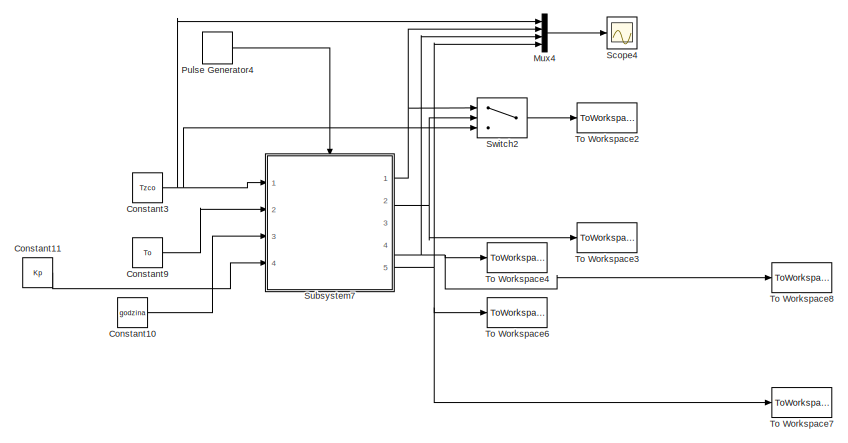
[diagram: root canvas - part 1/2, top left region]
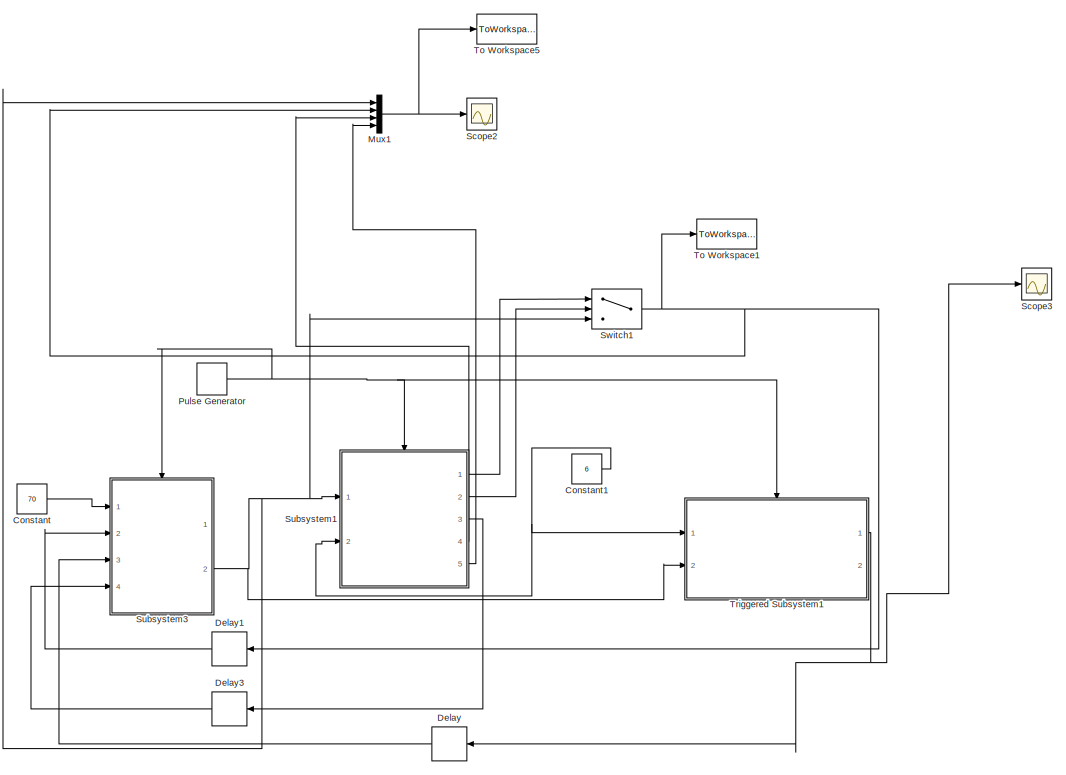
[diagram: root canvas - part 2/2, right side, full height]
MODEL slx_4477e643619d
KIND model
BLOCK [Constant] Constant
  Commented = on
  Value = 70
BLOCK [Constant] Constant1
  Commented = on
  Value = 6
BLOCK [Constant] Constant10
  Value = godzina
BLOCK [Constant] Constant11
  Value = Kp
BLOCK [Constant] Constant3
  Value = Tzco
BLOCK [Constant] Constant9
  Value = To
BLOCK [Delay] Delay
  Commented = on
  DelayLength = 1
  InitialCondition = 0
  InputPortMap = u0
  Ports = [1, 1]
  SampleTime = 1
BLOCK [Delay] Delay1
  Commented = on
  DelayLength = 1
  InitialCondition = 0
  InputPortMap = u0
  Ports = [1, 1]
  SampleTime = 1
BLOCK [Delay] Delay3
  Commented = on
  DelayLength = 1
  InitialCondition = 0
  InputPortMap = u0
  Ports = [1, 1]
  SampleTime = 1
BLOCK [Mux] Mux1
  Commented = on
  DisplayOption = bar
  Ports = [4, 1]
BLOCK [Mux] Mux4
  DisplayOption = bar
  Ports = [4, 1]
BLOCK [DiscretePulseGenerator] Pulse Generator
  Commented = on
  Period = 1
  Ports = [0, 1]
  PulseType = Time based
  PulseWidth = 50
BLOCK [DiscretePulseGenerator] Pulse Generator4
  Ports = [0, 1]
  PulseType = Time based
  PulseWidth = 50
BLOCK [Scope] Scope2
  Commented = on
  Floating = off
  NumInputPorts = 1
  Ports = [1]
  SaveName = ScopeData3
  ShowLegends = off
  TimeRange = 100
  YMax = 50
  YMin = 0
BLOCK [Scope] Scope3
  Commented = on
  Floating = off
  NumInputPorts = 1
  Ports = [1]
  ShowLegends = off
  YMax = 22.5
  YMin = 0
  ZoomMode = yonly
BLOCK [Scope] Scope4
  Floating = off
  NumInputPorts = 1
  Ports = [1]
  SaveName = ScopeData4
  ShowLegends = off
  YMax = 40
  YMin = 0
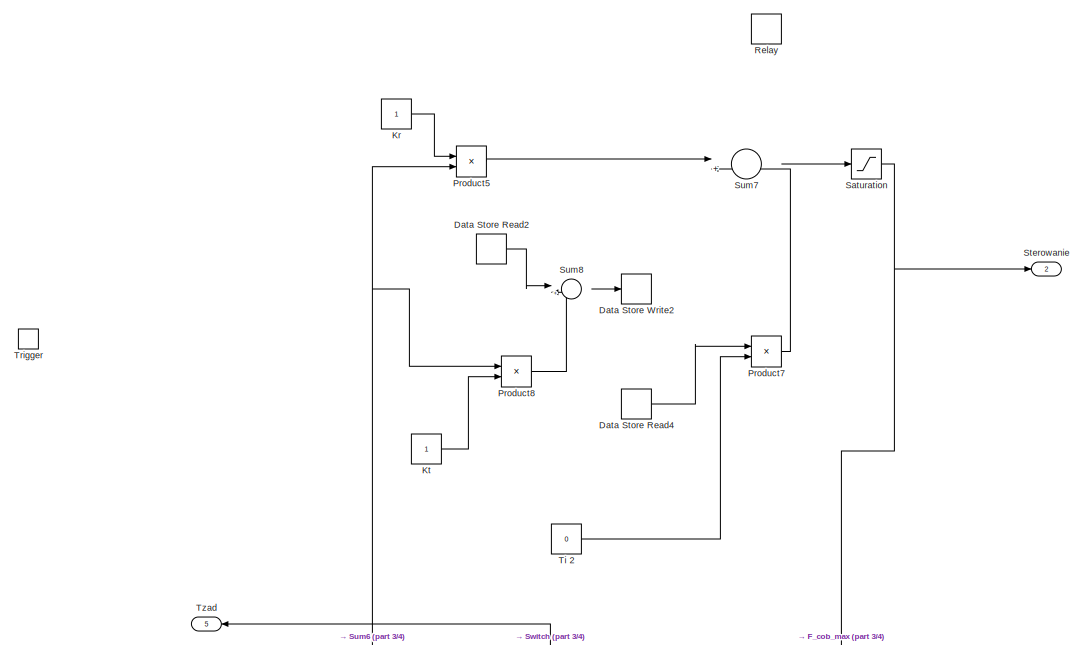
[diagram: Subsystem1 - part 1/4, top center region]
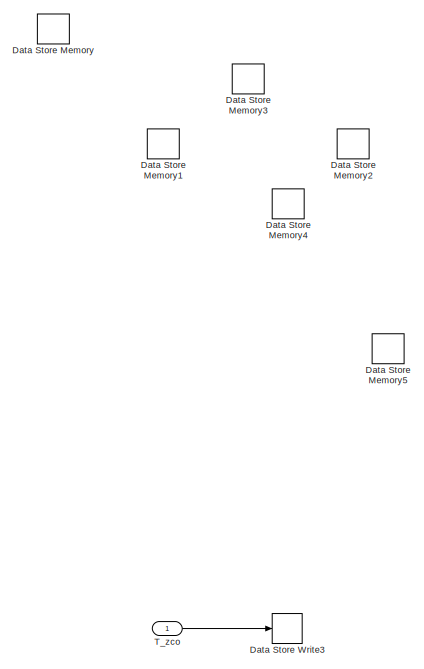
[diagram: Subsystem1 - part 2/4, middle right region]
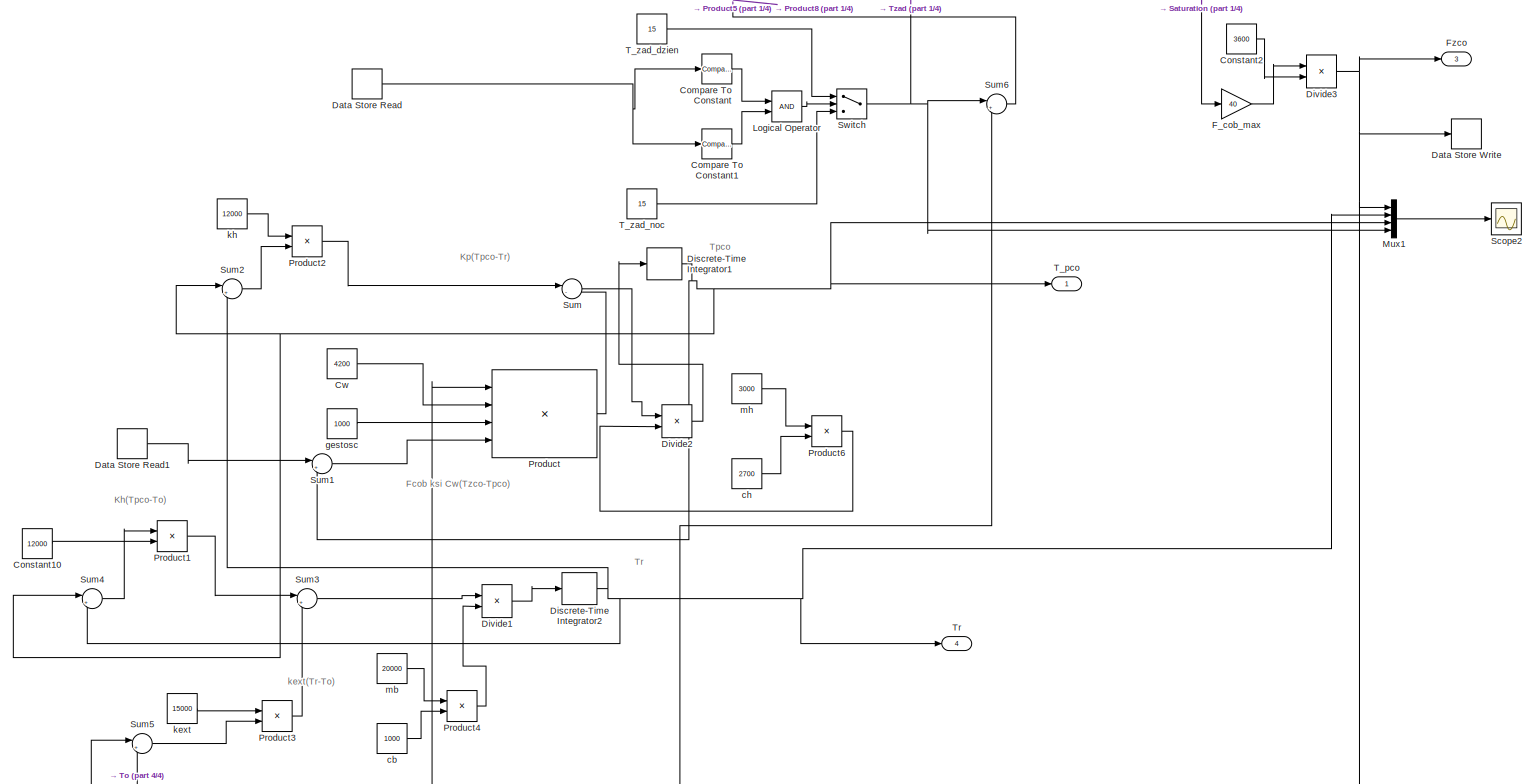
[diagram: Subsystem1 - part 3/4, bottom center region]
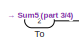
[diagram: Subsystem1 - part 4/4, bottom left region]
BLOCK [SubSystem] Subsystem1
  Commented = on
  Ports = [2, 5, 0, 1]
  RequestExecContextInheritance = off
BLOCK [Reference] Subsystem1/Compare To Constant  REF=simulink/Logic and Bit
Operations/Compare
To Constant
  OutDataTypeStr = uint8
  Ports = [1, 1]
  SourceBlock = simulink/Logic and Bit\nOperations/Compare\nTo Constant
  SourceType = Compare To Constant
  ZeroCross = off
  const = 22
  relop = <
BLOCK [Reference] Subsystem1/Compare To Constant1  REF=simulink/Logic and Bit
Operations/Compare
To Constant
  OutDataTypeStr = uint8
  Ports = [1, 1]
  SourceBlock = simulink/Logic and Bit\nOperations/Compare\nTo Constant
  SourceType = Compare To Constant
  ZeroCross = off
  const = 6
  relop = >
BLOCK [Constant] Subsystem1/Constant10
  Value = 12000
BLOCK [Constant] Subsystem1/Constant2
  Value = 3600
BLOCK [Constant] Subsystem1/Cw
  Value = 4200
BLOCK [DataStoreMemory] Subsystem1/Data Store Memory
  DataStoreName = Calka
  ReadBeforeWriteMsg = warning
  WriteAfterReadMsg = warning
  WriteAfterWriteMsg = warning
BLOCK [DataStoreMemory] Subsystem1/Data Store Memory1
  DataStoreName = godz
  InitialValue = 10
  ReadBeforeWriteMsg = warning
  WriteAfterReadMsg = warning
  WriteAfterWriteMsg = warning
BLOCK [DataStoreMemory] Subsystem1/Data Store Memory2
  DataStoreName = Tpco
  InitialValue = 10
  ReadBeforeWriteMsg = warning
  WriteAfterReadMsg = warning
  WriteAfterWriteMsg = warning
BLOCK [DataStoreMemory] Subsystem1/Data Store Memory3
  DataStoreName = T_o
  ReadBeforeWriteMsg = warning
  WriteAfterReadMsg = warning
  WriteAfterWriteMsg = warning
BLOCK [DataStoreMemory] Subsystem1/Data Store Memory4
  DataStoreName = F_cob
  InitialValue = 30
  ReadBeforeWriteMsg = warning
  WriteAfterReadMsg = warning
  WriteAfterWriteMsg = warning
BLOCK [DataStoreMemory] Subsystem1/Data Store Memory5
  DataStoreName = Tzco
  InitialValue = 10
  ReadBeforeWriteMsg = warning
  WriteAfterReadMsg = warning
  WriteAfterWriteMsg = warning
BLOCK [DataStoreRead] Subsystem1/Data Store Read
  DataStoreName = godz
  Ports = [0, 1]
BLOCK [DataStoreRead] Subsystem1/Data Store Read1
  DataStoreName = Tzco
  Ports = [0, 1]
BLOCK [DataStoreRead] Subsystem1/Data Store Read2
  DataStoreName = Calka
  Ports = [0, 1]
BLOCK [DataStoreRead] Subsystem1/Data Store Read4
  DataStoreName = Calka
  Ports = [0, 1]
BLOCK [DataStoreWrite] Subsystem1/Data Store Write
  DataStoreName = F_cob
  Ports = [1]
BLOCK [DataStoreWrite] Subsystem1/Data Store Write2
  DataStoreName = Calka
  Ports = [1]
BLOCK [DataStoreWrite] Subsystem1/Data Store Write3
  DataStoreName = Tzco
  Ports = [1]
BLOCK [DiscreteIntegrator] Subsystem1/Discrete-Time Integrator1
  ICPrevOutput = DiscIntNeverNeededParam
  ICPrevScaledInput = DiscIntNeverNeededParam
  InitialCondition = 20
  Ports = [1, 1]
  SampleTime = -1
  gainval = 1
BLOCK [DiscreteIntegrator] Subsystem1/Discrete-Time Integrator2
  ICPrevOutput = DiscIntNeverNeededParam
  ICPrevScaledInput = DiscIntNeverNeededParam
  Ports = [1, 1]
  SampleTime = -1
  gainval = 1
BLOCK [Product] Subsystem1/Divide1
  InputSameDT = off
  Inputs = */
  OutDataTypeStr = Inherit: Inherit via internal rule
  Ports = [2, 1]
  RndMeth = Floor
  SaturateOnIntegerOverflow = off
BLOCK [Product] Subsystem1/Divide2
  InputSameDT = off
  Inputs = */
  OutDataTypeStr = Inherit: Inherit via internal rule
  Ports = [2, 1]
  RndMeth = Floor
  SaturateOnIntegerOverflow = off
BLOCK [Product] Subsystem1/Divide3
  InputSameDT = off
  Inputs = */
  OutDataTypeStr = Inherit: Inherit via internal rule
  Ports = [2, 1]
  RndMeth = Floor
  SaturateOnIntegerOverflow = off
BLOCK [Gain] Subsystem1/F_cob_max
  Gain = 40
  OutDataTypeStr = Inherit: Inherit via internal rule
  ParamDataTypeStr = Inherit: Inherit via internal rule
  SaturateOnIntegerOverflow = off
BLOCK [Outport] Subsystem1/Fzco
  IconDisplay = Port number
  Port = 3
BLOCK [Constant] Subsystem1/Kr 
BLOCK [Constant] Subsystem1/Kt 
BLOCK [Logic] Subsystem1/Logical Operator
  AllPortsSameDT = off
  OutDataTypeStr = boolean
  Ports = [2, 1]
BLOCK [Mux] Subsystem1/Mux1
  DisplayOption = bar
  Ports = [4, 1]
BLOCK [Product] Subsystem1/Product
  InputSameDT = off
  Inputs = 4
  OutDataTypeStr = Inherit: Inherit via internal rule
  Ports = [4, 1]
  SaturateOnIntegerOverflow = off
BLOCK [Product] Subsystem1/Product1
  InputSameDT = off
  OutDataTypeStr = Inherit: Inherit via internal rule
  Ports = [2, 1]
  SaturateOnIntegerOverflow = off
BLOCK [Product] Subsystem1/Product2
  InputSameDT = off
  OutDataTypeStr = Inherit: Inherit via internal rule
  Ports = [2, 1]
  SaturateOnIntegerOverflow = off
BLOCK [Product] Subsystem1/Product3
  InputSameDT = off
  OutDataTypeStr = Inherit: Inherit via internal rule
  Ports = [2, 1]
  SaturateOnIntegerOverflow = off
BLOCK [Product] Subsystem1/Product4
  InputSameDT = off
  OutDataTypeStr = Inherit: Inherit via internal rule
  Ports = [2, 1]
  SaturateOnIntegerOverflow = off
BLOCK [Product] Subsystem1/Product5
  InputSameDT = off
  OutDataTypeStr = Inherit: Inherit via internal rule
  Ports = [2, 1]
  SaturateOnIntegerOverflow = off
BLOCK [Product] Subsystem1/Product6
  InputSameDT = off
  OutDataTypeStr = Inherit: Inherit via internal rule
  Ports = [2, 1]
  SaturateOnIntegerOverflow = off
BLOCK [Product] Subsystem1/Product7
  InputSameDT = off
  OutDataTypeStr = Inherit: Inherit via internal rule
  Ports = [2, 1]
  SaturateOnIntegerOverflow = off
BLOCK [Product] Subsystem1/Product8
  InputSameDT = off
  OutDataTypeStr = Inherit: Inherit via internal rule
  Ports = [2, 1]
  SaturateOnIntegerOverflow = off
BLOCK [Relay] Subsystem1/Relay
  InputProcessing = Elements as channels (sample based)
BLOCK [Saturate] Subsystem1/Saturation
  InputPortMap = u0
  LowerLimit = 0
  Ports = [1, 1]
  UpperLimit = 1
BLOCK [Scope] Subsystem1/Scope2
  Floating = off
  NumInputPorts = 1
  Ports = [1]
  SaveName = ScopeData2
  ShowLegends = off
  YMax = 35
  YMin = 0
BLOCK [Outport] Subsystem1/Sterowanie
  IconDisplay = Port number
  Port = 2
BLOCK [Sum] Subsystem1/Sum
  IconShape = round
  InputSameDT = off
  Inputs = |-+
  OutDataTypeStr = Inherit: Inherit via internal rule
  Ports = [2, 1]
  SaturateOnIntegerOverflow = off
BLOCK [Sum] Subsystem1/Sum1
  IconShape = round
  InputSameDT = off
  Inputs = |+-
  OutDataTypeStr = Inherit: Inherit via internal rule
  Ports = [2, 1]
  SaturateOnIntegerOverflow = off
BLOCK [Sum] Subsystem1/Sum2
  IconShape = round
  InputSameDT = off
  Inputs = |+-
  OutDataTypeStr = Inherit: Inherit via internal rule
  Ports = [2, 1]
  SaturateOnIntegerOverflow = off
BLOCK [Sum] Subsystem1/Sum3
  IconShape = round
  InputSameDT = off
  Inputs = |+-
  OutDataTypeStr = Inherit: Inherit via internal rule
  Ports = [2, 1]
  SaturateOnIntegerOverflow = off
BLOCK [Sum] Subsystem1/Sum4
  IconShape = round
  InputSameDT = off
  Inputs = |+-
  OutDataTypeStr = Inherit: Inherit via internal rule
  Ports = [2, 1]
  SaturateOnIntegerOverflow = off
BLOCK [Sum] Subsystem1/Sum5
  IconShape = round
  InputSameDT = off
  Inputs = |+-
  OutDataTypeStr = Inherit: Inherit via internal rule
  Ports = [2, 1]
  SaturateOnIntegerOverflow = off
BLOCK [Sum] Subsystem1/Sum6
  IconShape = round
  InputSameDT = off
  Inputs = |+-
  OutDataTypeStr = Inherit: Inherit via internal rule
  Ports = [2, 1]
  SaturateOnIntegerOverflow = off
BLOCK [Sum] Subsystem1/Sum7
  IconShape = round
  InputSameDT = off
  Inputs = |++
  OutDataTypeStr = Inherit: Inherit via internal rule
  Ports = [2, 1]
  SaturateOnIntegerOverflow = off
BLOCK [Sum] Subsystem1/Sum8
  IconShape = round
  InputSameDT = off
  Inputs = |++
  OutDataTypeStr = Inherit: Inherit via internal rule
  Ports = [2, 1]
  SaturateOnIntegerOverflow = off
BLOCK [Switch] Subsystem1/Switch
  Criteria = u2 > Threshold
  InputSameDT = off
  SaturateOnIntegerOverflow = off
BLOCK [Outport] Subsystem1/T_pco
  IconDisplay = Port number
BLOCK [Constant] Subsystem1/T_zad_dzien
  Value = 15
BLOCK [Constant] Subsystem1/T_zad_noc
  Value = 15
BLOCK [Inport] Subsystem1/T_zco
  IconDisplay = Port number
BLOCK [Constant] Subsystem1/Ti 2
  Value = 0
BLOCK [Inport] Subsystem1/To
  IconDisplay = Port number
  Port = 2
BLOCK [Outport] Subsystem1/Tr
  IconDisplay = Port number
  Port = 4
BLOCK [TriggerPort] Subsystem1/Trigger
  PortDimensions = 1
  Ports = []
  StatesWhenEnabling = held
BLOCK [Outport] Subsystem1/Tzad
  IconDisplay = Port number
  Port = 5
BLOCK [Constant] Subsystem1/cb 
  Value = 1000
BLOCK [Constant] Subsystem1/ch
  Value = 2700
BLOCK [Constant] Subsystem1/gestosc 
  Value = 1000
BLOCK [Constant] Subsystem1/kext
  Value = 15000
BLOCK [Constant] Subsystem1/kh
  Value = 12000
BLOCK [Constant] Subsystem1/mb
  Value = 20000
BLOCK [Constant] Subsystem1/mh
  Value = 3000
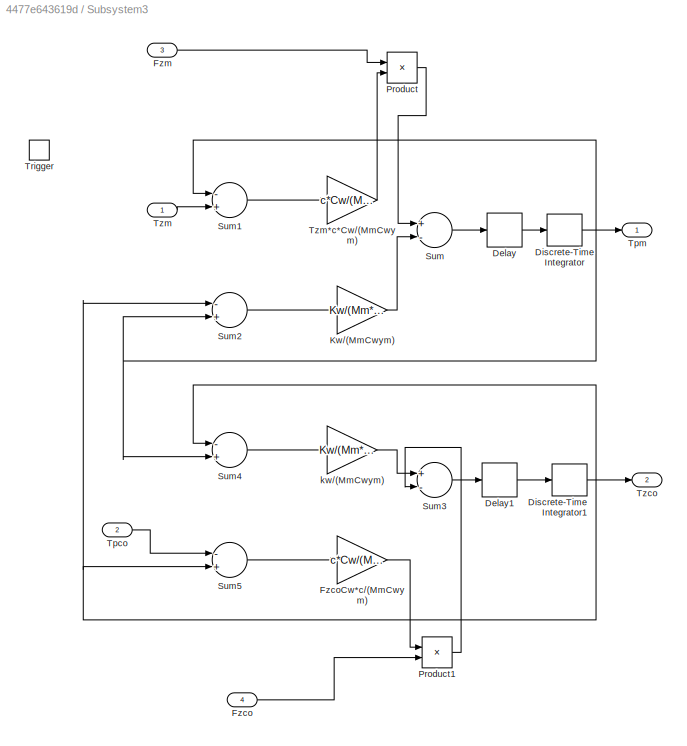
BLOCK [SubSystem] Subsystem3
  Commented = on
  Ports = [4, 2, 0, 1]
  RequestExecContextInheritance = off
BLOCK [Delay] Subsystem3/Delay
  DelayLength = 1
  InitialCondition = 0
  InputPortMap = u0
  Ports = [1, 1]
BLOCK [Delay] Subsystem3/Delay1
  DelayLength = 1
  InitialCondition = 0
  InputPortMap = u0
  Ports = [1, 1]
BLOCK [DiscreteIntegrator] Subsystem3/Discrete-Time Integrator
  ICPrevOutput = DiscIntNeverNeededParam
  ICPrevScaledInput = DiscIntNeverNeededParam
  InitialCondition = 40
  IntegratorMethod = Integration: Trapezoidal
  Ports = [1, 1]
  SampleTime = -1
BLOCK [DiscreteIntegrator] Subsystem3/Discrete-Time Integrator1
  ICPrevOutput = DiscIntNeverNeededParam
  ICPrevScaledInput = DiscIntNeverNeededParam
  InitialCondition = 80
  IntegratorMethod = Integration: Trapezoidal
  Ports = [1, 1]
  SampleTime = -1
BLOCK [Inport] Subsystem3/Fzco
  IconDisplay = Port number
  Port = 4
BLOCK [Gain] Subsystem3/FzcoCw*c//(MmCwym)
  Gain = c*Cw/(Mm*Cwym)
  OutDataTypeStr = Inherit: Inherit via internal rule
  ParamDataTypeStr = Inherit: Inherit via internal rule
  SaturateOnIntegerOverflow = off
BLOCK [Inport] Subsystem3/Fzm
  IconDisplay = Port number
  Port = 3
BLOCK [Gain] Subsystem3/Kw//(MmCwym)
  Gain = Kw/(Mm*Cwym)
  OutDataTypeStr = Inherit: Inherit via internal rule
  ParamDataTypeStr = Inherit: Inherit via internal rule
  SaturateOnIntegerOverflow = off
BLOCK [Product] Subsystem3/Product
  InputSameDT = off
  OutDataTypeStr = Inherit: Inherit via internal rule
  Ports = [2, 1]
  RndMeth = Floor
  SaturateOnIntegerOverflow = off
BLOCK [Product] Subsystem3/Product1
  InputSameDT = off
  OutDataTypeStr = Inherit: Inherit via internal rule
  Ports = [2, 1]
  SaturateOnIntegerOverflow = off
BLOCK [Sum] Subsystem3/Sum
  InputSameDT = off
  Inputs = +-
  OutDataTypeStr = Inherit: Inherit via internal rule
  Ports = [2, 1]
  SaturateOnIntegerOverflow = off
BLOCK [Sum] Subsystem3/Sum1
  InputSameDT = off
  Inputs = -+
  OutDataTypeStr = Inherit: Inherit via internal rule
  Ports = [2, 1]
  SaturateOnIntegerOverflow = off
BLOCK [Sum] Subsystem3/Sum2
  InputSameDT = off
  Inputs = -+
  OutDataTypeStr = Inherit: Inherit via internal rule
  Ports = [2, 1]
  SaturateOnIntegerOverflow = off
BLOCK [Sum] Subsystem3/Sum3
  InputSameDT = off
  Inputs = +-
  OutDataTypeStr = Inherit: Inherit via internal rule
  Ports = [2, 1]
  SaturateOnIntegerOverflow = off
BLOCK [Sum] Subsystem3/Sum4
  InputSameDT = off
  Inputs = -+
  OutDataTypeStr = Inherit: Inherit via internal rule
  Ports = [2, 1]
  SaturateOnIntegerOverflow = off
BLOCK [Sum] Subsystem3/Sum5
  InputSameDT = off
  Inputs = -+
  OutDataTypeStr = Inherit: Inherit via internal rule
  Ports = [2, 1]
  SaturateOnIntegerOverflow = off
BLOCK [Inport] Subsystem3/Tpco
  IconDisplay = Port number
  Port = 2
BLOCK [Outport] Subsystem3/Tpm
  IconDisplay = Port number
BLOCK [TriggerPort] Subsystem3/Trigger
  PortDimensions = 1
  Ports = []
  StatesWhenEnabling = held
BLOCK [Outport] Subsystem3/Tzco
  IconDisplay = Port number
  Port = 2
BLOCK [Inport] Subsystem3/Tzm
  IconDisplay = Port number
BLOCK [Gain] Subsystem3/Tzm*c*Cw//(MmCwym)
  Gain = c*Cw/(Mm*Cwym)
  OutDataTypeStr = Inherit: Inherit via internal rule
  ParamDataTypeStr = Inherit: Inherit via internal rule
  SaturateOnIntegerOverflow = off
BLOCK [Gain] Subsystem3/kw//(MmCwym)
  Gain = Kw/(Mm*Cwym)
  OutDataTypeStr = Inherit: Inherit via internal rule
  ParamDataTypeStr = Inherit: Inherit via internal rule
  SaturateOnIntegerOverflow = off
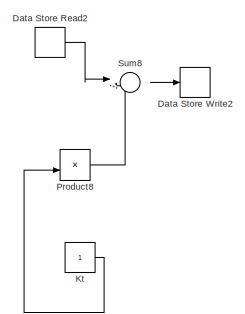
[diagram: Subsystem7 - part 1/4, top left region]
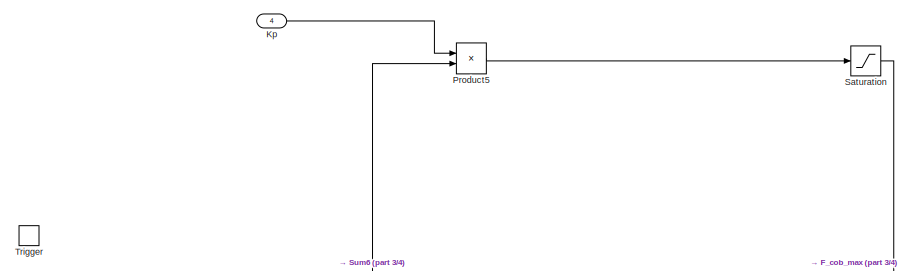
[diagram: Subsystem7 - part 2/4, middle right region]
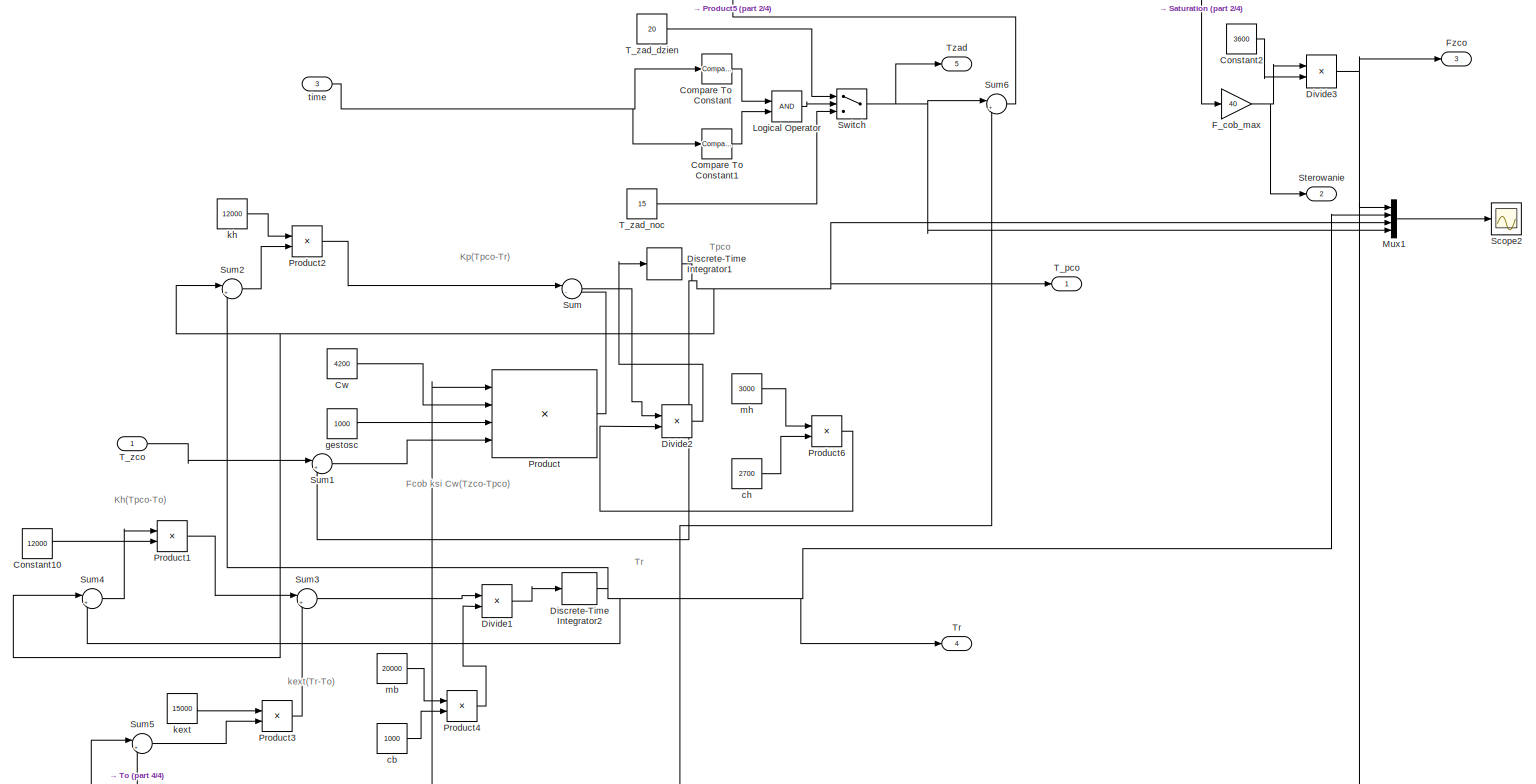
[diagram: Subsystem7 - part 3/4, bottom right region]
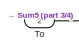
[diagram: Subsystem7 - part 4/4, bottom center region]
BLOCK [SubSystem] Subsystem7
  Ports = [4, 5, 0, 1]
  RequestExecContextInheritance = off
BLOCK [Reference] Subsystem7/Compare To Constant  REF=simulink/Logic and Bit
Operations/Compare
To Constant
  OutDataTypeStr = uint8
  Ports = [1, 1]
  SourceBlock = simulink/Logic and Bit\nOperations/Compare\nTo Constant
  SourceType = Compare To Constant
  ZeroCross = off
  const = 22
  relop = <
BLOCK [Reference] Subsystem7/Compare To Constant1  REF=simulink/Logic and Bit
Operations/Compare
To Constant
  OutDataTypeStr = uint8
  Ports = [1, 1]
  SourceBlock = simulink/Logic and Bit\nOperations/Compare\nTo Constant
  SourceType = Compare To Constant
  ZeroCross = off
  const = 6
  relop = >
BLOCK [Constant] Subsystem7/Constant10
  Value = 12000
BLOCK [Constant] Subsystem7/Constant2
  Value = 3600
BLOCK [Constant] Subsystem7/Cw
  Value = 4200
BLOCK [DataStoreRead] Subsystem7/Data Store Read2
  Commented = on
  DataStoreName = Calka
  Ports = [0, 1]
BLOCK [DataStoreWrite] Subsystem7/Data Store Write2
  Commented = on
  DataStoreName = Calka
  Ports = [1]
BLOCK [DiscreteIntegrator] Subsystem7/Discrete-Time Integrator1
  ICPrevOutput = DiscIntNeverNeededParam
  ICPrevScaledInput = DiscIntNeverNeededParam
  InitialCondition = 20
  Ports = [1, 1]
  SampleTime = -1
  gainval = 1
BLOCK [DiscreteIntegrator] Subsystem7/Discrete-Time Integrator2
  ICPrevOutput = DiscIntNeverNeededParam
  ICPrevScaledInput = DiscIntNeverNeededParam
  InitialCondition = 15
  Ports = [1, 1]
  SampleTime = -1
  gainval = 1
BLOCK [Product] Subsystem7/Divide1
  InputSameDT = off
  Inputs = */
  OutDataTypeStr = Inherit: Inherit via internal rule
  Ports = [2, 1]
  RndMeth = Floor
  SaturateOnIntegerOverflow = off
BLOCK [Product] Subsystem7/Divide2
  InputSameDT = off
  Inputs = */
  OutDataTypeStr = Inherit: Inherit via internal rule
  Ports = [2, 1]
  RndMeth = Floor
  SaturateOnIntegerOverflow = off
BLOCK [Product] Subsystem7/Divide3
  InputSameDT = off
  Inputs = */
  OutDataTypeStr = Inherit: Inherit via internal rule
  Ports = [2, 1]
  RndMeth = Floor
  SaturateOnIntegerOverflow = off
BLOCK [Gain] Subsystem7/F_cob_max
  Gain = 40
  OutDataTypeStr = Inherit: Inherit via internal rule
  ParamDataTypeStr = Inherit: Inherit via internal rule
  SaturateOnIntegerOverflow = off
BLOCK [Outport] Subsystem7/Fzco
  IconDisplay = Port number
  Port = 3
BLOCK [Inport] Subsystem7/Kp
  IconDisplay = Port number
  Port = 4
BLOCK [Constant] Subsystem7/Kt 
  Commented = on
BLOCK [Logic] Subsystem7/Logical Operator
  AllPortsSameDT = off
  OutDataTypeStr = boolean
  Ports = [2, 1]
BLOCK [Mux] Subsystem7/Mux1
  DisplayOption = bar
  Ports = [4, 1]
BLOCK [Product] Subsystem7/Product
  InputSameDT = off
  Inputs = 4
  OutDataTypeStr = Inherit: Inherit via internal rule
  Ports = [4, 1]
  SaturateOnIntegerOverflow = off
BLOCK [Product] Subsystem7/Product1
  InputSameDT = off
  OutDataTypeStr = Inherit: Inherit via internal rule
  Ports = [2, 1]
  SaturateOnIntegerOverflow = off
BLOCK [Product] Subsystem7/Product2
  InputSameDT = off
  OutDataTypeStr = Inherit: Inherit via internal rule
  Ports = [2, 1]
  SaturateOnIntegerOverflow = off
BLOCK [Product] Subsystem7/Product3
  InputSameDT = off
  OutDataTypeStr = Inherit: Inherit via internal rule
  Ports = [2, 1]
  SaturateOnIntegerOverflow = off
BLOCK [Product] Subsystem7/Product4
  InputSameDT = off
  OutDataTypeStr = Inherit: Inherit via internal rule
  Ports = [2, 1]
  SaturateOnIntegerOverflow = off
BLOCK [Product] Subsystem7/Product5
  InputSameDT = off
  OutDataTypeStr = Inherit: Inherit via internal rule
  Ports = [2, 1]
  SaturateOnIntegerOverflow = off
BLOCK [Product] Subsystem7/Product6
  InputSameDT = off
  OutDataTypeStr = Inherit: Inherit via internal rule
  Ports = [2, 1]
  SaturateOnIntegerOverflow = off
BLOCK [Product] Subsystem7/Product8
  Commented = on
  InputSameDT = off
  OutDataTypeStr = Inherit: Inherit via internal rule
  Ports = [2, 1]
  SaturateOnIntegerOverflow = off
BLOCK [Saturate] Subsystem7/Saturation
  InputPortMap = u0
  LowerLimit = 0
  Ports = [1, 1]
  UpperLimit = 1
BLOCK [Scope] Subsystem7/Scope2
  Floating = off
  NumInputPorts = 1
  Ports = [1]
  SaveName = ScopeData2
  ShowLegends = off
  YMax = 40
  YMin = 0
BLOCK [Outport] Subsystem7/Sterowanie
  IconDisplay = Port number
  Port = 2
BLOCK [Sum] Subsystem7/Sum
  IconShape = round
  InputSameDT = off
  Inputs = |-+
  OutDataTypeStr = Inherit: Inherit via internal rule
  Ports = [2, 1]
  SaturateOnIntegerOverflow = off
BLOCK [Sum] Subsystem7/Sum1
  IconShape = round
  InputSameDT = off
  Inputs = |+-
  OutDataTypeStr = Inherit: Inherit via internal rule
  Ports = [2, 1]
  SaturateOnIntegerOverflow = off
BLOCK [Sum] Subsystem7/Sum2
  IconShape = round
  InputSameDT = off
  Inputs = |+-
  OutDataTypeStr = Inherit: Inherit via internal rule
  Ports = [2, 1]
  SaturateOnIntegerOverflow = off
BLOCK [Sum] Subsystem7/Sum3
  IconShape = round
  InputSameDT = off
  Inputs = |+-
  OutDataTypeStr = Inherit: Inherit via internal rule
  Ports = [2, 1]
  SaturateOnIntegerOverflow = off
BLOCK [Sum] Subsystem7/Sum4
  IconShape = round
  InputSameDT = off
  Inputs = |+-
  OutDataTypeStr = Inherit: Inherit via internal rule
  Ports = [2, 1]
  SaturateOnIntegerOverflow = off
BLOCK [Sum] Subsystem7/Sum5
  IconShape = round
  InputSameDT = off
  Inputs = |+-
  OutDataTypeStr = Inherit: Inherit via internal rule
  Ports = [2, 1]
  SaturateOnIntegerOverflow = off
BLOCK [Sum] Subsystem7/Sum6
  IconShape = round
  InputSameDT = off
  Inputs = |+-
  OutDataTypeStr = Inherit: Inherit via internal rule
  Ports = [2, 1]
  SaturateOnIntegerOverflow = off
BLOCK [Sum] Subsystem7/Sum8
  Commented = on
  IconShape = round
  InputSameDT = off
  Inputs = |++
  OutDataTypeStr = Inherit: Inherit via internal rule
  Ports = [2, 1]
  SaturateOnIntegerOverflow = off
BLOCK [Switch] Subsystem7/Switch
  Criteria = u2 > Threshold
  InputSameDT = off
  SaturateOnIntegerOverflow = off
BLOCK [Outport] Subsystem7/T_pco
  IconDisplay = Port number
BLOCK [Constant] Subsystem7/T_zad_dzien
  Value = 20
BLOCK [Constant] Subsystem7/T_zad_noc
  Value = 15
BLOCK [Inport] Subsystem7/T_zco
  IconDisplay = Port number
BLOCK [Inport] Subsystem7/To
  IconDisplay = Port number
  Port = 2
BLOCK [Outport] Subsystem7/Tr
  IconDisplay = Port number
  Port = 4
BLOCK [TriggerPort] Subsystem7/Trigger
  PortDimensions = 1
  Ports = []
  StatesWhenEnabling = held
BLOCK [Outport] Subsystem7/Tzad
  IconDisplay = Port number
  Port = 5
BLOCK [Constant] Subsystem7/cb 
  Value = 1000
BLOCK [Constant] Subsystem7/ch
  Value = 2700
BLOCK [Constant] Subsystem7/gestosc 
  Value = 1000
BLOCK [Constant] Subsystem7/kext
  Value = 15000
BLOCK [Constant] Subsystem7/kh
  Value = 12000
BLOCK [Constant] Subsystem7/mb
  Value = 20000
BLOCK [Constant] Subsystem7/mh
  Value = 3000
BLOCK [Inport] Subsystem7/time
  IconDisplay = Port number
  Port = 3
BLOCK [Switch] Switch1
  Commented = on
  Criteria = u2 > Threshold
  InputSameDT = off
  SaturateOnIntegerOverflow = off
BLOCK [Switch] Switch2
  Criteria = u2 > Threshold
  InputSameDT = off
  SaturateOnIntegerOverflow = off
BLOCK [ToWorkspace] To Workspace1
  Commented = on
  FixptAsFi = on
  MaxDataPoints = inf
  Ports = [1]
  SampleTime = -1
  Save2DSignal = 3-D array (concatenate along third dimension)
  VariableName = T_pco
BLOCK [ToWorkspace] To Workspace2
  FixptAsFi = on
  MaxDataPoints = 1
  Ports = [1]
  SampleTime = -1
  Save2DSignal = 3-D array (concatenate along third dimension)
  VariableName = Tpco
BLOCK [ToWorkspace] To Workspace3
  FixptAsFi = on
  MaxDataPoints = 1
  Ports = [1]
  SampleTime = -1
  Save2DSignal = 3-D array (concatenate along third dimension)
  VariableName = Fzco
BLOCK [ToWorkspace] To Workspace4
  FixptAsFi = on
  MaxDataPoints = 1
  Ports = [1]
  SampleTime = -1
  Save2DSignal = 3-D array (concatenate along third dimension)
  VariableName = Tr
BLOCK [ToWorkspace] To Workspace5
  Commented = on
  FixptAsFi = on
  MaxDataPoints = inf
  Ports = [1]
  SampleTime = -1
  Save2DSignal = 3-D array (concatenate along third dimension)
  VariableName = wyj
BLOCK [ToWorkspace] To Workspace6
  FixptAsFi = on
  MaxDataPoints = 1
  Ports = [1]
  SampleTime = -1
  Save2DSignal = 3-D array (concatenate along third dimension)
  VariableName = Tzad
BLOCK [ToWorkspace] To Workspace7
  FixptAsFi = on
  MaxDataPoints = inf
  Ports = [1]
  SampleTime = -1
  Save2DSignal = 3-D array (concatenate along third dimension)
  SaveFormat = Timeseries
  VariableName = Tzadana
BLOCK [ToWorkspace] To Workspace8
  FixptAsFi = on
  MaxDataPoints = inf
  Ports = [1]
  SampleTime = -1
  Save2DSignal = 3-D array (concatenate along third dimension)
  SaveFormat = Timeseries
  VariableName = Tbud
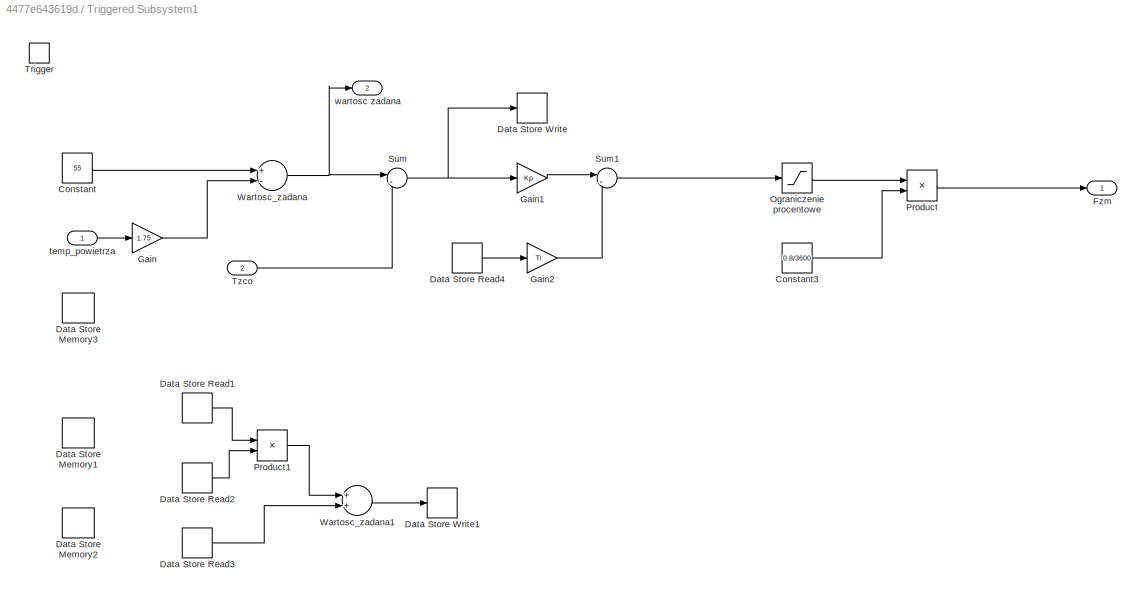
BLOCK [SubSystem] Triggered Subsystem1
  Commented = on
  Ports = [2, 2, 0, 1]
  RequestExecContextInheritance = off
  TreatAsAtomicUnit = on
BLOCK [Constant] Triggered Subsystem1/Constant
  Value = 55
BLOCK [Constant] Triggered Subsystem1/Constant3
  Value = 0.8/3600
BLOCK [DataStoreMemory] Triggered Subsystem1/Data Store Memory1
  DataStoreName = Tk
  InitialValue = 1
  ReadBeforeWriteMsg = warning
  WriteAfterReadMsg = warning
  WriteAfterWriteMsg = warning
BLOCK [DataStoreMemory] Triggered Subsystem1/Data Store Memory2
  DataStoreName = Uchyb
  ReadBeforeWriteMsg = warning
  WriteAfterReadMsg = warning
  WriteAfterWriteMsg = warning
BLOCK [DataStoreMemory] Triggered Subsystem1/Data Store Memory3
  DataStoreName = calka
  ReadBeforeWriteMsg = warning
  WriteAfterReadMsg = warning
  WriteAfterWriteMsg = warning
BLOCK [DataStoreRead] Triggered Subsystem1/Data Store Read1
  DataStoreName = Uchyb
  Ports = [0, 1]
BLOCK [DataStoreRead] Triggered Subsystem1/Data Store Read2
  DataStoreName = Tk
  Ports = [0, 1]
BLOCK [DataStoreRead] Triggered Subsystem1/Data Store Read3
  DataStoreName = calka
  Ports = [0, 1]
BLOCK [DataStoreRead] Triggered Subsystem1/Data Store Read4
  DataStoreName = calka
  Ports = [0, 1]
BLOCK [DataStoreWrite] Triggered Subsystem1/Data Store Write
  DataStoreName = Uchyb
  Ports = [1]
BLOCK [DataStoreWrite] Triggered Subsystem1/Data Store Write1
  DataStoreName = calka
  Ports = [1]
BLOCK [Outport] Triggered Subsystem1/Fzm
  IconDisplay = Port number
BLOCK [Gain] Triggered Subsystem1/Gain
  Gain = 1.75
  OutDataTypeStr = Inherit: Inherit via internal rule
  ParamDataTypeStr = Inherit: Inherit via internal rule
  SaturateOnIntegerOverflow = off
BLOCK [Gain] Triggered Subsystem1/Gain1
  Gain = Kp
  OutDataTypeStr = Inherit: Inherit via internal rule
  ParamDataTypeStr = Inherit: Inherit via internal rule
  SaturateOnIntegerOverflow = off
BLOCK [Gain] Triggered Subsystem1/Gain2
  Gain = Ti
  OutDataTypeStr = Inherit: Inherit via internal rule
  ParamDataTypeStr = Inherit: Inherit via internal rule
  SaturateOnIntegerOverflow = off
BLOCK [Saturate] Triggered Subsystem1/Ograniczenie procentowe
  InputPortMap = u0
  LowerLimit = 0
  Ports = [1, 1]
  UpperLimit = 100
BLOCK [Product] Triggered Subsystem1/Product
  InputSameDT = off
  OutDataTypeStr = Inherit: Inherit via internal rule
  Ports = [2, 1]
  RndMeth = Floor
  SaturateOnIntegerOverflow = off
BLOCK [Product] Triggered Subsystem1/Product1
  InputSameDT = off
  OutDataTypeStr = Inherit: Inherit via internal rule
  Ports = [2, 1]
  RndMeth = Floor
  SaturateOnIntegerOverflow = off
BLOCK [Sum] Triggered Subsystem1/Sum
  IconShape = round
  InputSameDT = off
  Inputs = |+-
  OutDataTypeStr = Inherit: Inherit via internal rule
  Ports = [2, 1]
  SaturateOnIntegerOverflow = off
BLOCK [Sum] Triggered Subsystem1/Sum1
  IconShape = round
  InputSameDT = off
  Inputs = |++
  OutDataTypeStr = Inherit: Inherit via internal rule
  Ports = [2, 1]
  SaturateOnIntegerOverflow = off
BLOCK [TriggerPort] Triggered Subsystem1/Trigger
  PortDimensions = 1
  Ports = []
  StatesWhenEnabling = held
BLOCK [Inport] Triggered Subsystem1/Tzco
  IconDisplay = Port number
  Port = 2
BLOCK [Sum] Triggered Subsystem1/Wartosc_zadana
  InputSameDT = off
  Inputs = +-
  OutDataTypeStr = Inherit: Inherit via internal rule
  Ports = [2, 1]
  SaturateOnIntegerOverflow = off
BLOCK [Sum] Triggered Subsystem1/Wartosc_zadana1
  InputSameDT = off
  OutDataTypeStr = Inherit: Inherit via internal rule
  Ports = [2, 1]
  SaturateOnIntegerOverflow = off
BLOCK [Inport] Triggered Subsystem1/temp_powietrza
  IconDisplay = Port number
BLOCK [Outport] Triggered Subsystem1/wartosc zadana
  IconDisplay = Port number
  Port = 2
ANNOTATION Subsystem1: Fcob ksi Cw(Tzco-Tpco)
ANNOTATION Subsystem1: Kh(Tpco-To)
ANNOTATION Subsystem1: Kp(Tpco-Tr)
ANNOTATION Subsystem1: Tpco
ANNOTATION Subsystem1: Tr
ANNOTATION Subsystem1: kext(Tr-To)
ANNOTATION Subsystem7: Fcob ksi Cw(Tzco-Tpco)
ANNOTATION Subsystem7: Kh(Tpco-To)
ANNOTATION Subsystem7: Kp(Tpco-Tr)
ANNOTATION Subsystem7: Tpco
ANNOTATION Subsystem7: Tr
ANNOTATION Subsystem7: kext(Tr-To)
LINE Constant10:1 -> Subsystem7:3
LINE Constant11:1 -> Subsystem7:4
NET Constant1:1 -> Subsystem1:2, Triggered Subsystem1:1
NET Constant3:1 -> Mux4:1, Subsystem7:1, Switch2:3
LINE Constant9:1 -> Subsystem7:2
LINE Constant:1 -> Subsystem3:1
LINE Delay1:1 -> Subsystem3:2
LINE Delay3:1 -> Subsystem3:4
LINE Delay:1 -> Subsystem3:3
NET Mux1:1 -> Scope2:1, To Workspace5:1
LINE Mux4:1 -> Scope4:1
LINE Pulse Generator4:1 -> Subsystem7:trigger
NET Pulse Generator:1 -> Subsystem1:trigger, Subsystem3:trigger, Triggered Subsystem1:trigger
LINE Subsystem1/Compare To Constant1:1 -> Subsystem1/Logical Operator:2
LINE Subsystem1/Compare To Constant:1 -> Subsystem1/Logical Operator:1
LINE Subsystem1/Constant10:1 -> Subsystem1/Product1:2
LINE Subsystem1/Constant2:1 -> Subsystem1/Divide3:2
LINE Subsystem1/Cw:1 -> Subsystem1/Product:2
LINE Subsystem1/Data Store Read1:1 -> Subsystem1/Sum1:1
LINE Subsystem1/Data Store Read2:1 -> Subsystem1/Sum8:1
LINE Subsystem1/Data Store Read4:1 -> Subsystem1/Product7:1
NET Subsystem1/Data Store Read:1 -> Subsystem1/Compare To Constant1:1, Subsystem1/Compare To Constant:1
NET Subsystem1/Discrete-Time Integrator1:1 -> Subsystem1/Mux1:3, Subsystem1/Sum1:2, Subsystem1/Sum2:1, Subsystem1/Sum4:1, Subsystem1/T_pco:1
NET Subsystem1/Discrete-Time Integrator2:1 -> Subsystem1/Mux1:2, Subsystem1/Sum2:2, Subsystem1/Sum4:2, Subsystem1/Sum5:1, Subsystem1/Sum6:2, Subsystem1/Tr:1
LINE Subsystem1/Divide1:1 -> Subsystem1/Discrete-Time Integrator2:1
LINE Subsystem1/Divide2:1 -> Subsystem1/Discrete-Time Integrator1:1
NET Subsystem1/Divide3:1 -> Subsystem1/Data Store Write:1, Subsystem1/Fzco:1, Subsystem1/Mux1:1, Subsystem1/Product:1
LINE Subsystem1/F_cob_max:1 -> Subsystem1/Divide3:1
LINE Subsystem1/Kr :1 -> Subsystem1/Product5:1
LINE Subsystem1/Kt :1 -> Subsystem1/Product8:2
LINE Subsystem1/Logical Operator:1 -> Subsystem1/Switch:2
LINE Subsystem1/Mux1:1 -> Subsystem1/Scope2:1
LINE Subsystem1/Product1:1 -> Subsystem1/Sum3:1
LINE Subsystem1/Product2:1 -> Subsystem1/Sum:1
LINE Subsystem1/Product3:1 -> Subsystem1/Sum3:2
LINE Subsystem1/Product4:1 -> Subsystem1/Divide1:2
LINE Subsystem1/Product5:1 -> Subsystem1/Sum7:1
LINE Subsystem1/Product6:1 -> Subsystem1/Divide2:2
LINE Subsystem1/Product7:1 -> Subsystem1/Sum7:2
LINE Subsystem1/Product8:1 -> Subsystem1/Sum8:2
LINE Subsystem1/Product:1 -> Subsystem1/Sum:2
NET Subsystem1/Saturation:1 -> Subsystem1/F_cob_max:1, Subsystem1/Sterowanie:1
LINE Subsystem1/Sum1:1 -> Subsystem1/Product:4
LINE Subsystem1/Sum2:1 -> Subsystem1/Product2:2
LINE Subsystem1/Sum3:1 -> Subsystem1/Divide1:1
LINE Subsystem1/Sum4:1 -> Subsystem1/Product1:1
LINE Subsystem1/Sum5:1 -> Subsystem1/Product3:2
NET Subsystem1/Sum6:1 -> Subsystem1/Product5:2, Subsystem1/Product8:1
LINE Subsystem1/Sum7:1 -> Subsystem1/Saturation:1
LINE Subsystem1/Sum8:1 -> Subsystem1/Data Store Write2:1
LINE Subsystem1/Sum:1 -> Subsystem1/Divide2:1
NET Subsystem1/Switch:1 -> Subsystem1/Mux1:4, Subsystem1/Sum6:1, Subsystem1/Tzad:1
LINE Subsystem1/T_zad_dzien:1 -> Subsystem1/Switch:1
LINE Subsystem1/T_zad_noc:1 -> Subsystem1/Switch:3
LINE Subsystem1/T_zco:1 -> Subsystem1/Data Store Write3:1
LINE Subsystem1/Ti 2:1 -> Subsystem1/Product7:2
LINE Subsystem1/To:1 -> Subsystem1/Sum5:2
LINE Subsystem1/cb :1 -> Subsystem1/Product4:2
LINE Subsystem1/ch:1 -> Subsystem1/Product6:2
LINE Subsystem1/gestosc :1 -> Subsystem1/Product:3
LINE Subsystem1/kext:1 -> Subsystem1/Product3:1
LINE Subsystem1/kh:1 -> Subsystem1/Product2:1
LINE Subsystem1/mb:1 -> Subsystem1/Product4:1
LINE Subsystem1/mh:1 -> Subsystem1/Product6:1
LINE Subsystem1:1 -> Switch1:1
LINE Subsystem1:2 -> Switch1:2
LINE Subsystem1:3 -> Delay3:1
LINE Subsystem1:4 -> Mux1:3
LINE Subsystem1:5 -> Mux1:4
LINE Subsystem3/Delay1:1 -> Subsystem3/Discrete-Time Integrator1:1
LINE Subsystem3/Delay:1 -> Subsystem3/Discrete-Time Integrator:1
NET Subsystem3/Discrete-Time Integrator1:1 -> Subsystem3/Sum2:1, Subsystem3/Sum4:1, Subsystem3/Sum5:2, Subsystem3/Tzco:1
NET Subsystem3/Discrete-Time Integrator:1 -> Subsystem3/Sum1:1, Subsystem3/Sum2:2, Subsystem3/Sum4:2, Subsystem3/Tpm:1
LINE Subsystem3/Fzco:1 -> Subsystem3/Product1:2
LINE Subsystem3/FzcoCw*c//(MmCwym):1 -> Subsystem3/Product1:1
LINE Subsystem3/Fzm:1 -> Subsystem3/Product:1
LINE Subsystem3/Kw//(MmCwym):1 -> Subsystem3/Sum:2
LINE Subsystem3/Product1:1 -> Subsystem3/Sum3:2
LINE Subsystem3/Product:1 -> Subsystem3/Sum:1
LINE Subsystem3/Sum1:1 -> Subsystem3/Tzm*c*Cw//(MmCwym):1
LINE Subsystem3/Sum2:1 -> Subsystem3/Kw//(MmCwym):1
LINE Subsystem3/Sum3:1 -> Subsystem3/Delay1:1
LINE Subsystem3/Sum4:1 -> Subsystem3/kw//(MmCwym):1
LINE Subsystem3/Sum5:1 -> Subsystem3/FzcoCw*c//(MmCwym):1
LINE Subsystem3/Sum:1 -> Subsystem3/Delay:1
LINE Subsystem3/Tpco:1 -> Subsystem3/Sum5:1
LINE Subsystem3/Tzm*c*Cw//(MmCwym):1 -> Subsystem3/Product:2
LINE Subsystem3/Tzm:1 -> Subsystem3/Sum1:2
LINE Subsystem3/kw//(MmCwym):1 -> Subsystem3/Sum3:1
NET Subsystem3:2 -> Mux1:1, Subsystem1:1, Switch1:3, Triggered Subsystem1:2
LINE Subsystem7/Compare To Constant1:1 -> Subsystem7/Logical Operator:2
LINE Subsystem7/Compare To Constant:1 -> Subsystem7/Logical Operator:1
LINE Subsystem7/Constant10:1 -> Subsystem7/Product1:2
LINE Subsystem7/Constant2:1 -> Subsystem7/Divide3:2
LINE Subsystem7/Cw:1 -> Subsystem7/Product:2
LINE Subsystem7/Data Store Read2:1 -> Subsystem7/Sum8:1
NET Subsystem7/Discrete-Time Integrator1:1 -> Subsystem7/Mux1:3, Subsystem7/Sum1:2, Subsystem7/Sum2:1, Subsystem7/Sum4:1, Subsystem7/T_pco:1
NET Subsystem7/Discrete-Time Integrator2:1 -> Subsystem7/Mux1:2, Subsystem7/Sum2:2, Subsystem7/Sum4:2, Subsystem7/Sum5:1, Subsystem7/Sum6:2, Subsystem7/Tr:1
LINE Subsystem7/Divide1:1 -> Subsystem7/Discrete-Time Integrator2:1
LINE Subsystem7/Divide2:1 -> Subsystem7/Discrete-Time Integrator1:1
NET Subsystem7/Divide3:1 -> Subsystem7/Fzco:1, Subsystem7/Mux1:1, Subsystem7/Product:1
NET Subsystem7/F_cob_max:1 -> Subsystem7/Divide3:1, Subsystem7/Sterowanie:1
LINE Subsystem7/Kp:1 -> Subsystem7/Product5:1
LINE Subsystem7/Kt :1 -> Subsystem7/Product8:2
LINE Subsystem7/Logical Operator:1 -> Subsystem7/Switch:2
LINE Subsystem7/Mux1:1 -> Subsystem7/Scope2:1
LINE Subsystem7/Product1:1 -> Subsystem7/Sum3:1
LINE Subsystem7/Product2:1 -> Subsystem7/Sum:1
LINE Subsystem7/Product3:1 -> Subsystem7/Sum3:2
LINE Subsystem7/Product4:1 -> Subsystem7/Divide1:2
LINE Subsystem7/Product5:1 -> Subsystem7/Saturation:1
LINE Subsystem7/Product6:1 -> Subsystem7/Divide2:2
LINE Subsystem7/Product8:1 -> Subsystem7/Sum8:2
LINE Subsystem7/Product:1 -> Subsystem7/Sum:2
LINE Subsystem7/Saturation:1 -> Subsystem7/F_cob_max:1
LINE Subsystem7/Sum1:1 -> Subsystem7/Product:4
LINE Subsystem7/Sum2:1 -> Subsystem7/Product2:2
LINE Subsystem7/Sum3:1 -> Subsystem7/Divide1:1
LINE Subsystem7/Sum4:1 -> Subsystem7/Product1:1
LINE Subsystem7/Sum5:1 -> Subsystem7/Product3:2
LINE Subsystem7/Sum6:1 -> Subsystem7/Product5:2
LINE Subsystem7/Sum8:1 -> Subsystem7/Data Store Write2:1
LINE Subsystem7/Sum:1 -> Subsystem7/Divide2:1
NET Subsystem7/Switch:1 -> Subsystem7/Mux1:4, Subsystem7/Sum6:1, Subsystem7/Tzad:1
LINE Subsystem7/T_zad_dzien:1 -> Subsystem7/Switch:1
LINE Subsystem7/T_zad_noc:1 -> Subsystem7/Switch:3
LINE Subsystem7/T_zco:1 -> Subsystem7/Sum1:1
LINE Subsystem7/To:1 -> Subsystem7/Sum5:2
LINE Subsystem7/cb :1 -> Subsystem7/Product4:2
LINE Subsystem7/ch:1 -> Subsystem7/Product6:2
LINE Subsystem7/gestosc :1 -> Subsystem7/Product:3
LINE Subsystem7/kext:1 -> Subsystem7/Product3:1
LINE Subsystem7/kh:1 -> Subsystem7/Product2:1
LINE Subsystem7/mb:1 -> Subsystem7/Product4:1
LINE Subsystem7/mh:1 -> Subsystem7/Product6:1
NET Subsystem7/time:1 -> Subsystem7/Compare To Constant1:1, Subsystem7/Compare To Constant:1
NET Subsystem7:1 -> Mux4:2, Switch2:1
NET Subsystem7:2 -> Switch2:2, To Workspace3:1
NET Subsystem7:4 -> Mux4:3, To Workspace4:1, To Workspace8:1
NET Subsystem7:5 -> Mux4:4, To Workspace6:1, To Workspace7:1
NET Switch1:1 -> Delay1:1, Mux1:2, To Workspace1:1
LINE Switch2:1 -> To Workspace2:1
LINE Triggered Subsystem1/Constant3:1 -> Triggered Subsystem1/Product:2
LINE Triggered Subsystem1/Constant:1 -> Triggered Subsystem1/Wartosc_zadana:1
LINE Triggered Subsystem1/Data Store Read1:1 -> Triggered Subsystem1/Product1:1
LINE Triggered Subsystem1/Data Store Read2:1 -> Triggered Subsystem1/Product1:2
LINE Triggered Subsystem1/Data Store Read3:1 -> Triggered Subsystem1/Wartosc_zadana1:2
LINE Triggered Subsystem1/Data Store Read4:1 -> Triggered Subsystem1/Gain2:1
LINE Triggered Subsystem1/Gain1:1 -> Triggered Subsystem1/Sum1:1
LINE Triggered Subsystem1/Gain2:1 -> Triggered Subsystem1/Sum1:2
LINE Triggered Subsystem1/Gain:1 -> Triggered Subsystem1/Wartosc_zadana:2
LINE Triggered Subsystem1/Ograniczenie procentowe:1 -> Triggered Subsystem1/Product:1
LINE Triggered Subsystem1/Product1:1 -> Triggered Subsystem1/Wartosc_zadana1:1
LINE Triggered Subsystem1/Product:1 -> Triggered Subsystem1/Fzm:1
LINE Triggered Subsystem1/Sum1:1 -> Triggered Subsystem1/Ograniczenie procentowe:1
NET Triggered Subsystem1/Sum:1 -> Triggered Subsystem1/Data Store Write:1, Triggered Subsystem1/Gain1:1
LINE Triggered Subsystem1/Tzco:1 -> Triggered Subsystem1/Sum:2
LINE Triggered Subsystem1/Wartosc_zadana1:1 -> Triggered Subsystem1/Data Store Write1:1
NET Triggered Subsystem1/Wartosc_zadana:1 -> Triggered Subsystem1/Sum:1, Triggered Subsystem1/wartosc zadana:1
LINE Triggered Subsystem1/temp_powietrza:1 -> Triggered Subsystem1/Gain:1
NET Triggered Subsystem1:1 -> Delay:1, Scope3:1
note: NET lines group one-source signal fan-out (src -> all destinations, sorted); 1:1 wires keep LINE
